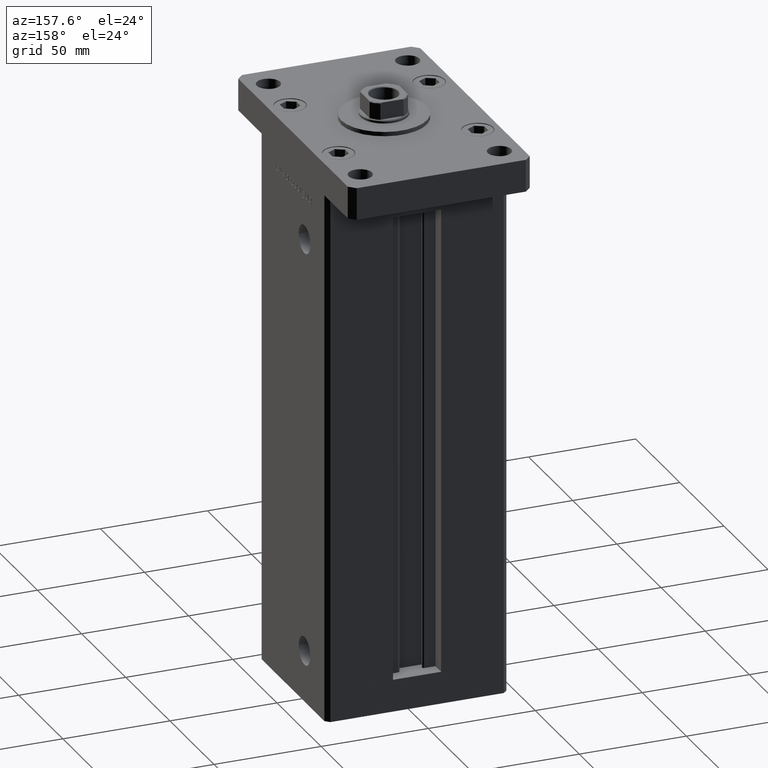
[diagram: clean part render]
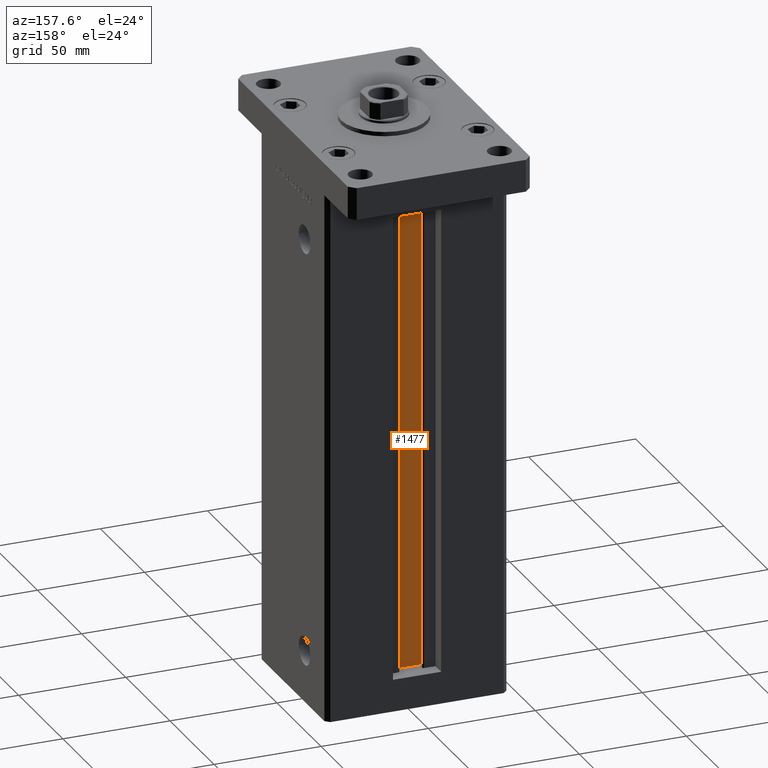
[diagram: same view with one face highlighted and labeled with its STEP entity id]
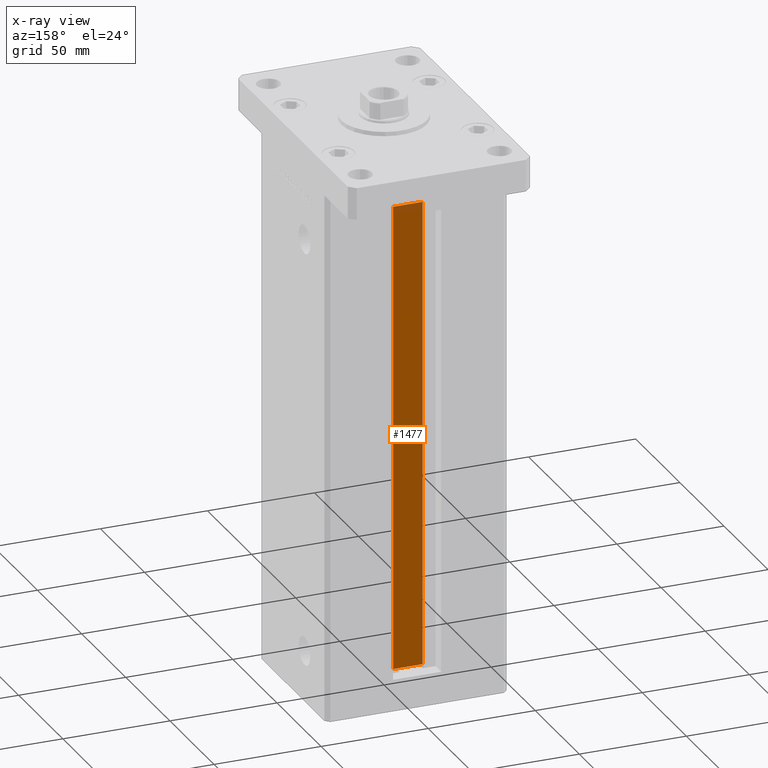
[diagram: x-ray of the same camera — body ghosted, the highlighted face saturated]
A machine part, auxiliary view. The second image highlights one B-rep face of the part: STEP entity #1477.
The next image is the same camera in x-ray: the body ghosted, the highlighted face saturated — about 2% of this face is hidden behind the body in this view.
In plain terms, the highlighted planar face has unit normal (0, -1, 0).
Its self-contained STEP definition (entity closure, byte-faithful):
#447 = VERTEX_POINT ( 'NONE', #37341 ) ;
#1477 = ADVANCED_FACE ( 'NONE', ( #39358 ), #11401, .F. ) ;
#5885 = LINE ( 'NONE', #50889, #17051 ) ;
#6763 = DIRECTION ( 'NONE',  ( -1.000000000000000000, 0.000000000000000000, 0.000000000000000000 ) ) ;
#7857 = EDGE_LOOP ( 'NONE', ( #12518, #15246, #18881, #10862 ) ) ;
#10329 = VERTEX_POINT ( 'NONE', #51193 ) ;
#10347 = CARTESIAN_POINT ( 'NONE',  ( 6.876153656360465938, 26.99999999999986855, 0.000000000000000000 ) ) ;
#10862 = ORIENTED_EDGE ( 'NONE', *, *, #27396, .F. ) ;
#11401 = PLANE ( 'NONE',  #17407 ) ;
#12135 = CARTESIAN_POINT ( 'NONE',  ( -6.876153656360465938, 26.99999999999986855, 0.000000000000000000 ) ) ;
#12518 = ORIENTED_EDGE ( 'NONE', *, *, #25622, .F. ) ;
#13509 = CARTESIAN_POINT ( 'NONE',  ( 6.876153656360465938, 26.99999999999986855, 0.000000000000000000 ) ) ;
#14945 = DIRECTION ( 'NONE',  ( 0.000000000000000000, -1.000000000000000000, -0.000000000000000000 ) ) ;
#15246 = ORIENTED_EDGE ( 'NONE', *, *, #22608, .F. ) ;
#17051 = VECTOR ( 'NONE', #51686, 1000.000000000000000 ) ;
#17407 = AXIS2_PLACEMENT_3D ( 'NONE', #10347, #14945, #31478 ) ;
#18750 = VERTEX_POINT ( 'NONE', #20934 ) ;
#18881 = ORIENTED_EDGE ( 'NONE', *, *, #49697, .T. ) ;
#20934 = CARTESIAN_POINT ( 'NONE',  ( 6.876153656360465938, 26.99999999999986855, 0.000000000000000000 ) ) ;
#21913 = DIRECTION ( 'NONE',  ( -0.000000000000000000, -0.000000000000000000, 1.000000000000000000 ) ) ;
#22608 = EDGE_CURVE ( 'NONE', #37161, #18750, #5885, .T. ) ;
#25622 = EDGE_CURVE ( 'NONE', #18750, #10329, #29783, .T. ) ;
#26030 = CARTESIAN_POINT ( 'NONE',  ( -6.876153656360465938, 26.99999999999986855, 0.000000000000000000 ) ) ;
#27396 = EDGE_CURVE ( 'NONE', #10329, #447, #51238, .T. ) ;
#29783 = LINE ( 'NONE', #13509, #43946 ) ;
#30845 = VECTOR ( 'NONE', #36286, 1000.000000000000000 ) ;
#30924 = CARTESIAN_POINT ( 'NONE',  ( 0.000000000000000000, 26.99999999999986855, 218.5000000000000000 ) ) ;
#31478 = DIRECTION ( 'NONE',  ( 0.000000000000000000, 0.000000000000000000, -1.000000000000000000 ) ) ;
#33014 = LINE ( 'NONE', #12135, #30845 ) ;
#36286 = DIRECTION ( 'NONE',  ( -0.000000000000000000, -0.000000000000000000, 1.000000000000000000 ) ) ;
#37161 = VERTEX_POINT ( 'NONE', #26030 ) ;
#37341 = CARTESIAN_POINT ( 'NONE',  ( -6.876153656360465938, 26.99999999999986855, 218.5000000000000000 ) ) ;
#38938 = VECTOR ( 'NONE', #6763, 1000.000000000000000 ) ;
#39358 = FACE_OUTER_BOUND ( 'NONE', #7857, .T. ) ;
#43946 = VECTOR ( 'NONE', #21913, 1000.000000000000000 ) ;
#49697 = EDGE_CURVE ( 'NONE', #37161, #447, #33014, .T. ) ;
#50889 = CARTESIAN_POINT ( 'NONE',  ( 6.876153656360465938, 26.99999999999986855, 0.000000000000000000 ) ) ;
#51193 = CARTESIAN_POINT ( 'NONE',  ( 6.876153656360465938, 26.99999999999986855, 218.5000000000000000 ) ) ;
#51238 = LINE ( 'NONE', #30924, #38938 ) ;
#51686 = DIRECTION ( 'NONE',  ( 1.000000000000000000, -0.000000000000000000, -0.000000000000000000 ) ) ;